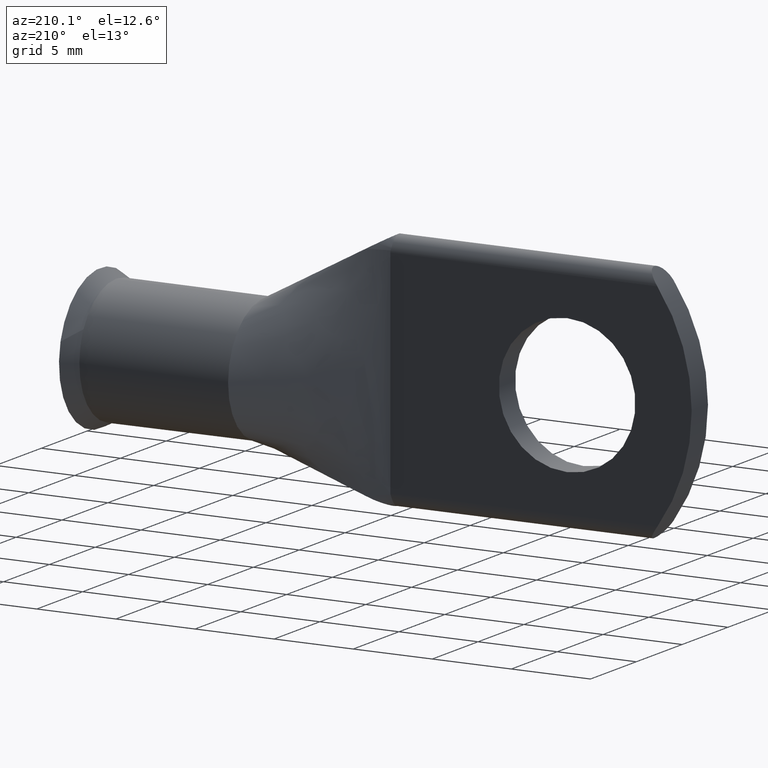
[diagram: clean part render]
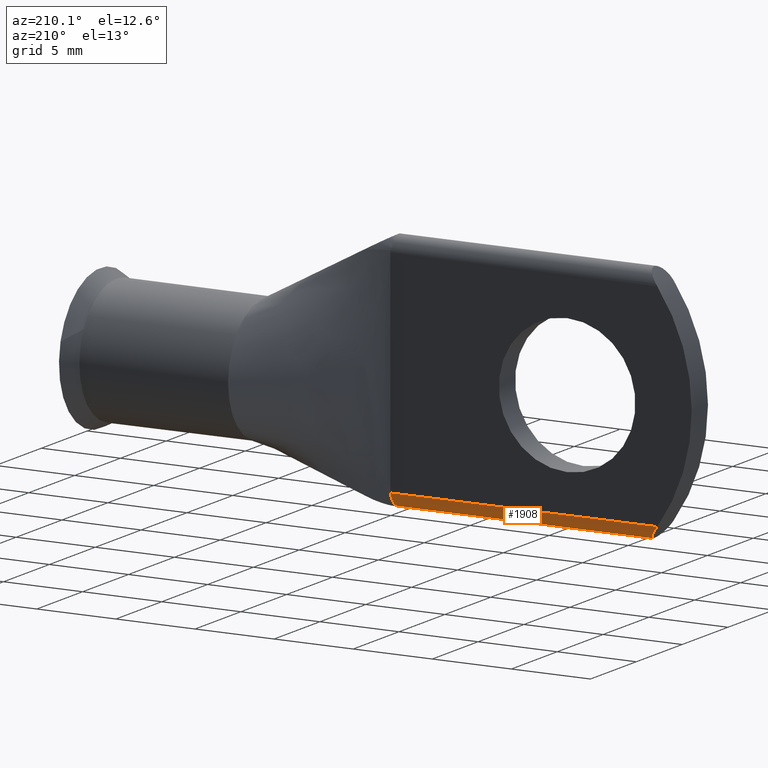
[diagram: same view with one face highlighted and labeled with its STEP entity id]
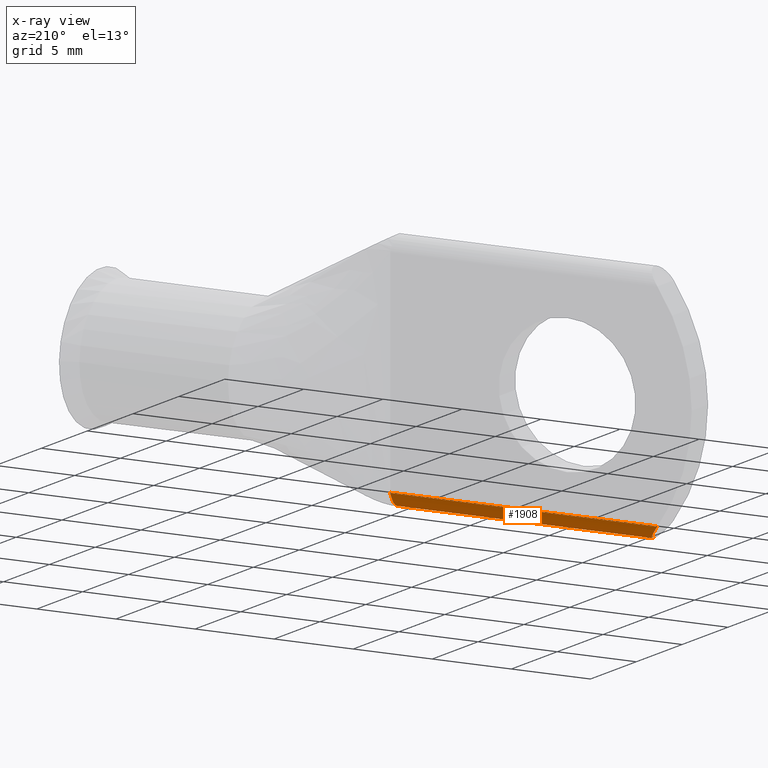
[diagram: x-ray of the same camera — body ghosted, the highlighted face saturated]
A machine part, auxiliary view. The second image highlights one B-rep face of the part: STEP entity #1908.
The next image is the same camera in x-ray: the body ghosted, the highlighted face saturated — about 0% of this face is hidden behind the body in this view.
In plain terms, the highlighted cylindrical surface (edge-blend (fillet) strip) has radius 0.889 mm, axis along (1, 0, -0).
Its self-contained STEP definition (entity closure, byte-faithful):
#48 = CARTESIAN_POINT ( 'NONE',  ( 0.3750000000000001665, 0.000000000000000000, -0.2999999999999999334 ) ) ;
#125 = VERTEX_POINT ( 'NONE', #1474 ) ;
#421 = DIRECTION ( 'NONE',  ( 1.000000000000000000, 0.000000000000000000, -5.363413618387689923E-17 ) ) ;
#571 = EDGE_CURVE ( 'NONE', #125, #2790, #2002, .T. ) ;
#597 = CARTESIAN_POINT ( 'NONE',  ( 0.3726041206342877721, 0.01622664552708882879, -0.2962912340755968210 ) ) ;
#662 = DIRECTION ( 'NONE',  ( 0.000000000000000000, 0.000000000000000000, -1.000000000000000000 ) ) ;
#836 = VERTEX_POINT ( 'NONE', #3655 ) ;
#866 = CARTESIAN_POINT ( 'NONE',  ( -0.2664440434012765313, 0.01944868069837066976, -0.2945255958694171783 ) ) ;
#932 = CARTESIAN_POINT ( 'NONE',  ( 0.3750000000000001110, 0.03500000000000000333, -0.2665889140773575749 ) ) ;
#945 = CARTESIAN_POINT ( 'NONE',  ( -0.2773284324398532785, 0.03106641838537308256, -0.2812637396049865735 ) ) ;
#976 = CARTESIAN_POINT ( 'NONE',  ( 0.3750000000000001665, 0.03500000000000000333, -0.2649999999999999578 ) ) ;
#982 = CYLINDRICAL_SURFACE ( 'NONE', #2911, 0.03500000000000000333 ) ;
#1101 = DIRECTION ( 'NONE',  ( -1.000000000000000000, 0.000000000000000000, 5.363413618387689923E-17 ) ) ;
#1152 = ORIENTED_EDGE ( 'NONE', *, *, #2283, .F. ) ;
#1201 = CARTESIAN_POINT ( 'NONE',  ( 0.3720900075673571061, 0.02890127666301387996, -0.2851854481210983616 ) ) ;
#1219 = ORIENTED_EDGE ( 'NONE', *, *, #2921, .T. ) ;
#1267 = CARTESIAN_POINT ( 'NONE',  ( -0.2865347519629266593, 0.03500000000000001027, -0.2692383235966032129 ) ) ;
#1295 = CARTESIAN_POINT ( 'NONE',  ( -0.2743857353190808368, 0.02883822920560016878, -0.2849499781500695050 ) ) ;
#1312 = FACE_OUTER_BOUND ( 'NONE', #2514, .T. ) ;
#1316 = CARTESIAN_POINT ( 'NONE',  ( 0.3750000000000001665, 0.03500000000000000333, -0.2649999999999999578 ) ) ;
#1329 = ORIENTED_EDGE ( 'NONE', *, *, #571, .F. ) ;
#1474 = CARTESIAN_POINT ( 'NONE',  ( -0.2616859215040125974, -2.958307349119333037E-10, -0.3000000106130662481 ) ) ;
#1518 = CARTESIAN_POINT ( 'NONE',  ( 0.3722824139005834199, 0.01991271144233331195, -0.2940889908363643612 ) ) ;
#1568 = CARTESIAN_POINT ( 'NONE',  ( 0.3744285130138731432, 0.03468951346468684277, -0.2696516293471389880 ) ) ;
#1580 = CARTESIAN_POINT ( 'NONE',  ( 0.3745011907651618621, 0.000000000000000000, -0.2999999999999999334 ) ) ;
#1760 = B_SPLINE_CURVE_WITH_KNOTS ( 'NONE', 3,
 ( #3828, #2473, #3566, #1201, #4128, #1518, #597, #2193, #3216, #1580 ),
 .UNSPECIFIED., .F., .F.,
 ( 4, 2, 2, 2, 4 ),
 ( 1.276729099158447195E-14, 0.0003196086150170872591, 0.0006392172300214071703, 0.0009588258450257271899, 0.001278434460030047209 ),
 .UNSPECIFIED. ) ;
#1908 = ADVANCED_FACE ( 'NONE', ( #1312 ), #982, .T. ) ;
#1933 = CARTESIAN_POINT ( 'NONE',  ( -0.2616859215040125974, -2.958307349119333037E-10, -0.3000000106130662481 ) ) ;
#1990 = EDGE_CURVE ( 'NONE', #3473, #125, #3405, .T. ) ;
#2002 = LINE ( 'NONE', #48, #3270 ) ;
#2164 = CARTESIAN_POINT ( 'NONE',  ( -0.2629677630876860461, 0.01033760574121221631, -0.2985399553761402536 ) ) ;
#2193 = CARTESIAN_POINT ( 'NONE',  ( 0.3734423431315712083, 0.008407480284905132634, -0.2992309747201933878 ) ) ;
#2239 = CARTESIAN_POINT ( 'NONE',  ( -0.2619490604946085321, 0.005251541765493537677, -0.2997021066213411689 ) ) ;
#2275 = DIRECTION ( 'NONE',  ( 1.000000000000000000, 0.000000000000000000, -5.363413618387689307E-17 ) ) ;
#2283 = EDGE_CURVE ( 'NONE', #836, #3473, #2931, .T. ) ;
#2473 = CARTESIAN_POINT ( 'NONE',  ( 0.3734094678746009976, 0.03414042273262535288, -0.2737464720199034307 ) ) ;
#2482 = CARTESIAN_POINT ( 'NONE',  ( -0.2730003519135536516, 0.02758679802376155787, -0.2866570765478364535 ) ) ;
#2514 = EDGE_LOOP ( 'NONE', ( #1329, #2695, #1152, #3082, #1219 ) ) ;
#2583 = CARTESIAN_POINT ( 'NONE',  ( -0.2636793436793802292, 0.01266065747782905981, -0.2977257492379065673 ) ) ;
#2622 = CARTESIAN_POINT ( 'NONE',  ( 0.3750000000000001665, 0.000000000000000000, -0.2649999999999999578 ) ) ;
#2695 = ORIENTED_EDGE ( 'NONE', *, *, #1990, .F. ) ;
#2790 = VERTEX_POINT ( 'NONE', #3108 ) ;
#2803 = CARTESIAN_POINT ( 'NONE',  ( -0.2895837638799520497, 0.03500000000000000333, -0.2650000000000097833 ) ) ;
#2911 = AXIS2_PLACEMENT_3D ( 'NONE', #2622, #2275, #662 ) ;
#2921 = EDGE_CURVE ( 'NONE', #3895, #2790, #1760, .T. ) ;
#2931 = LINE ( 'NONE', #1316, #4147 ) ;
#3082 = ORIENTED_EDGE ( 'NONE', *, *, #3507, .F. ) ;
#3108 = CARTESIAN_POINT ( 'NONE',  ( 0.3745011907651618621, 0.000000000000000000, -0.2999999999999999334 ) ) ;
#3179 = B_SPLINE_CURVE_WITH_KNOTS ( 'NONE', 3,
 ( #3259, #3911, #932, #976 ),
 .UNSPECIFIED., .F., .F.,
 ( 4, 4 ),
 ( 0.002797248650388587179, 0.002915338553677062489 ),
 .UNSPECIFIED. ) ;
#3184 = CARTESIAN_POINT ( 'NONE',  ( -0.2895837638799520497, 0.03500000000000000333, -0.2650000000000097833 ) ) ;
#3216 = CARTESIAN_POINT ( 'NONE',  ( 0.3739722328555913355, 0.004160900773459303911, -0.2999999999999997669 ) ) ;
#3259 = CARTESIAN_POINT ( 'NONE',  ( 0.3744285130138731432, 0.03468951346468684277, -0.2696516293471389880 ) ) ;
#3270 = VECTOR ( 'NONE', #421, 39.37007874015748143 ) ;
#3405 = B_SPLINE_CURVE_WITH_KNOTS ( 'NONE', 3,
 ( #2803, #1267, #4116, #3874, #945, #1295, #2482, #3795, #866, #2583, #2164, #2239, #3572, #1933 ),
 .UNSPECIFIED., .F., .F.,
 ( 4, 2, 2, 2, 2, 2, 4 ),
 ( 0.000000000000000000, 0.1250803293654240145, 0.1876204940481360217, 0.2501606587308480290, 0.3752409880962725430, 0.4377811527789847168, 0.5003213174616968351 ),
 .UNSPECIFIED. ) ;
#3473 = VERTEX_POINT ( 'NONE', #3184 ) ;
#3507 = EDGE_CURVE ( 'NONE', #3895, #836, #3179, .T. ) ;
#3566 = CARTESIAN_POINT ( 'NONE',  ( 0.3727876312208316389, 0.03286468773344182470, -0.2777533685269809038 ) ) ;
#3572 = CARTESIAN_POINT ( 'NONE',  ( -0.2616870308609374751, 0.002592842779031170452, -0.2999987515841754937 ) ) ;
#3655 = CARTESIAN_POINT ( 'NONE',  ( 0.3750000000000001665, 0.03500000000000000333, -0.2649999999999999578 ) ) ;
#3795 = CARTESIAN_POINT ( 'NONE',  ( -0.2688583445459509780, 0.02308443794123379855, -0.2916907083332116457 ) ) ;
#3828 = CARTESIAN_POINT ( 'NONE',  ( 0.3744285130138731432, 0.03468951346468684277, -0.2696516293471389880 ) ) ;
#3874 = CARTESIAN_POINT ( 'NONE',  ( -0.2788340004126547700, 0.03199505002199157233, -0.2793483926128500494 ) ) ;
#3895 = VERTEX_POINT ( 'NONE', #1568 ) ;
#3911 = CARTESIAN_POINT ( 'NONE',  ( 0.3748050896855857350, 0.03489242377000967982, -0.2681384262857267609 ) ) ;
#4116 = CARTESIAN_POINT ( 'NONE',  ( -0.2834592279300597872, 0.03425385752086496094, -0.2733589165491739359 ) ) ;
#4128 = CARTESIAN_POINT ( 'NONE',  ( 0.3720269216571660542, 0.02623679454875140621, -0.2885439180399170800 ) ) ;
#4147 = VECTOR ( 'NONE', #1101, 39.37007874015748143 ) ;